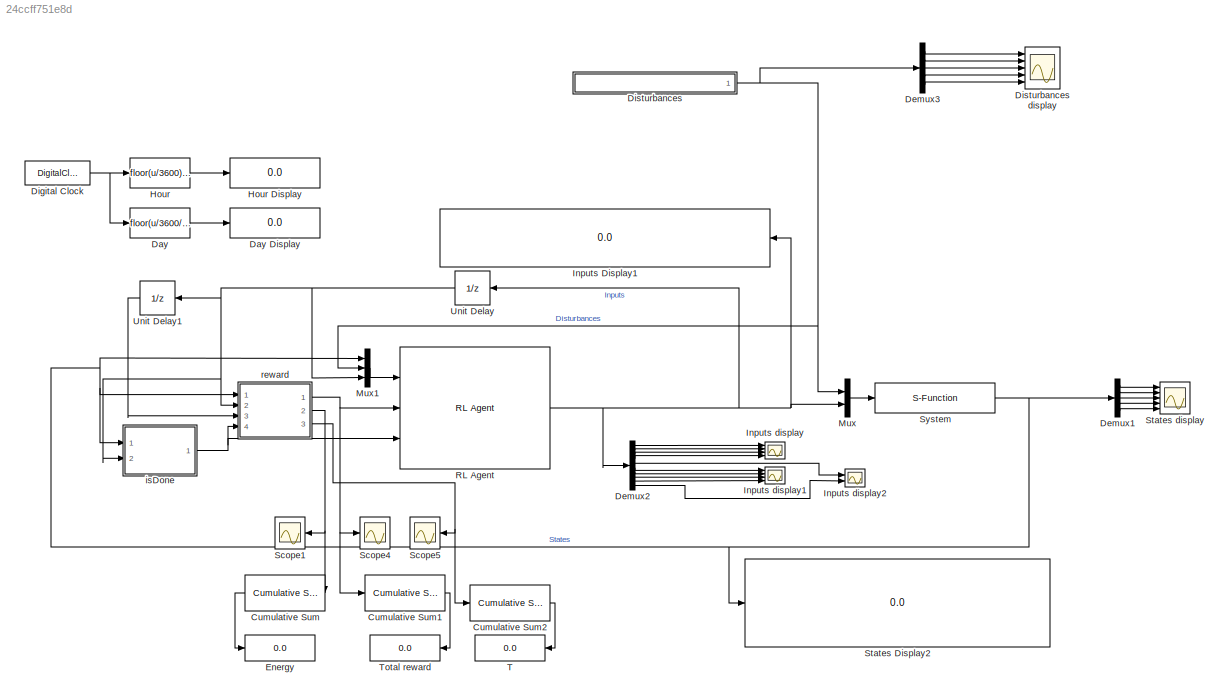
MODEL slx_24ccff751e8d
KIND model
CONFIG AbsTol = auto
CONFIG EnableMultiTasking = on
CONFIG FixedStep = 2
CONFIG MaxStep = auto
CONFIG MinStep = auto
CONFIG RelTol = 1e-3
CONFIG SampleTimeConstraint = Unconstrained
CONFIG SolverName = ode45
CONFIG StartTime = 0.0
CONFIG StopTime = 3600*24*(simulation_days-2)
BLOCK [Reference] Cumulative Sum  REF=dspmathops/Cumulative
Sum
  Ports = [1, 1]
  SourceBlock = dspmathops/Cumulative\nSum
  SourceProductBaseCode = DS
  SourceType = Cumulative Sum
  UserDataPersistent = on
BLOCK [Reference] Cumulative Sum1  REF=dspmathops/Cumulative
Sum
  Ports = [1, 1]
  SourceBlock = dspmathops/Cumulative\nSum
  SourceProductBaseCode = DS
  SourceType = Cumulative Sum
  UserDataPersistent = on
BLOCK [Reference] Cumulative Sum2  REF=dspmathops/Cumulative
Sum
  Ports = [1, 1]
  SourceBlock = dspmathops/Cumulative\nSum
  SourceProductBaseCode = DS
  SourceType = Cumulative Sum
  UserDataPersistent = on
BLOCK [Fcn] Day
  Commented = on
  Expr = floor(u/3600/24)+1
  SampleTime = 1800
BLOCK [Display] Day Display
  Commented = on
  Decimation = 1
  Ports = [1]
BLOCK [Demux] Demux1
  Outputs = 5
  Ports = [1, 5]
BLOCK [Demux] Demux2
  Outputs = 10
  Ports = [1, 10]
BLOCK [Demux] Demux3
  Outputs = 5
  Ports = [1, 5]
BLOCK [DigitalClock] Digital Clock
  Commented = on
  SampleTime = 60
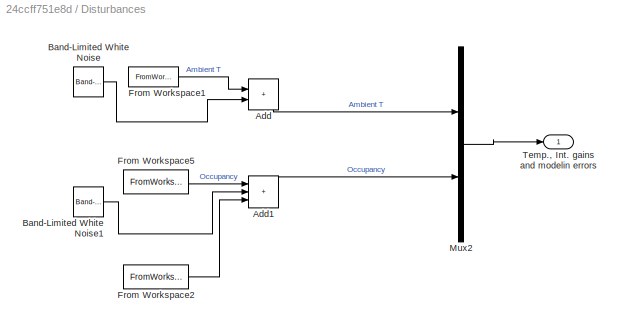
BLOCK [SubSystem] Disturbances
  Ports = [0, 1]
  RequestExecContextInheritance = off
  TreatAsAtomicUnit = on
BLOCK [Scope] Disturbances display
  Floating = off
  NumInputPorts = 5
  Ports = [5]
  ScopeSpecificationString = Simulink.scopes.TimeScopeBlockCfg('CurrentConfiguration', extmgr.ConfigurationSet(extmgr.Configuration('Core','General UI',true),extmgr.Configuration('Core','Source UI',true),extmgr.Configuration('Sources','WiredSimulink',true,'DataLoggingVariableName','dist','DataLoggingSaveFormat','StructureWithTime','DataLoggingDecimation','1','DataLoggingDecimateData',true),extmgr.Configuration('Visuals','Time...<+2387ch>
BLOCK [Sum] Disturbances/Add
  IconShape = rectangular
  Ports = [2, 1]
BLOCK [Sum] Disturbances/Add1
  IconShape = rectangular
  Inputs = +++
  Ports = [3, 1]
BLOCK [Reference] Disturbances/Band-Limited White Noise  REF=simulink/Sources/Band-Limited
White Noise
  Ports = [0, 1]
  SourceBlock = simulink/Sources/Band-Limited\nWhite Noise
  SourceProductBaseCode = SL
  SourceType = Band-Limited White Noise.
BLOCK [Reference] Disturbances/Band-Limited White Noise1  REF=simulink/Sources/Band-Limited
White Noise
  Ports = [0, 1]
  SourceBlock = simulink/Sources/Band-Limited\nWhite Noise
  SourceProductBaseCode = SL
  SourceType = Band-Limited White Noise.
BLOCK [FromWorkspace] Disturbances/From Workspace1
  OutDataTypeStr = double
  SampleTime = Ts
  VariableName = T_supply
  ZeroCross = off
BLOCK [FromWorkspace] Disturbances/From Workspace2
  OutDataTypeStr = double
  SampleTime = Ts
  VariableName = w_struct
  ZeroCross = off
BLOCK [FromWorkspace] Disturbances/From Workspace5
  OutDataTypeStr = double
  SampleTime = Ts
  VariableName = Pds_struct
  ZeroCross = off
BLOCK [Mux] Disturbances/Mux2
  DisplayOption = bar
  Inputs = 2
  Ports = [2, 1]
BLOCK [Outport] Disturbances/Temp., Int. gains and modelin errors
BLOCK [Display] Energy
  Decimation = 1
  Ports = [1]
BLOCK [Fcn] Hour
  Commented = on
  Expr = floor(u/3600)-floor(u/3600/24)*24
  SampleTime = 1800
BLOCK [Display] Hour Display
  Commented = on
  Decimation = 1
  Ports = [1]
BLOCK [Display] Inputs Display1
  Decimation = 1
  Ports = [1]
BLOCK [Scope] Inputs display
  Floating = off
  NumInputPorts = 4
  Ports = [4]
  ScopeSpecificationString = Simulink.scopes.TimeScopeBlockCfg('CurrentConfiguration', extmgr.ConfigurationSet(extmgr.Configuration('Core','General UI',true),extmgr.Configuration('Core','Source UI',true),extmgr.Configuration('Sources','WiredSimulink',true,'DataLogging',true,'DataLoggingVariableName','inputs','DataLoggingSaveFormat','StructureWithTime','DataLoggingDecimation','1','DataLoggingDecimateData',true),extmgr.Configur...<+3816ch>
BLOCK [Scope] Inputs display1
  Floating = off
  NumInputPorts = 4
  Ports = [4]
  ScopeSpecificationString = Simulink.scopes.TimeScopeBlockCfg('CurrentConfiguration', extmgr.ConfigurationSet(extmgr.Configuration('Core','General UI',true),extmgr.Configuration('Core','Source UI',true),extmgr.Configuration('Sources','WiredSimulink',true,'DataLogging',true,'DataLoggingVariableName','ScopeData1','DataLoggingSaveFormat','StructureWithTime','DataLoggingDecimation','1','DataLoggingDecimateData',true),extmgr.Conf...<+3822ch>
BLOCK [Scope] Inputs display2
  Floating = off
  NumInputPorts = 2
  Ports = [2]
  ScopeSpecificationString = Simulink.scopes.TimeScopeBlockCfg('CurrentConfiguration', extmgr.ConfigurationSet(extmgr.Configuration('Core','General UI',true),extmgr.Configuration('Core','Source UI',true),extmgr.Configuration('Sources','WiredSimulink',true,'DataLogging',true,'DataLoggingVariableName','ScopeData2','DataLoggingSaveFormat','StructureWithTime','DataLoggingDecimation','1','DataLoggingDecimateData',true),extmgr.Conf...<+2429ch>
BLOCK [Mux] Mux
  DisplayOption = bar
  Inputs = 2
  Ports = [2, 1]
BLOCK [Mux] Mux1
  DisplayOption = bar
  Inputs = 3
  Ports = [3, 1]
BLOCK [Reference] RL Agent  REF=rllib/RL Agent
  Ports = [3, 1]
  SourceBlock = rllib/RL Agent
  SourceProductBaseCode = RL
  SourceType = RL Agent
BLOCK [Scope] Scope1
  Floating = off
  NumInputPorts = 1
  Ports = [1]
  ScopeSpecificationString = Simulink.scopes.TimeScopeBlockCfg('CurrentConfiguration', extmgr.ConfigurationSet(extmgr.Configuration('Core','General UI',true),extmgr.Configuration('Core','Source UI',true),extmgr.Configuration('Sources','WiredSimulink',true,'DataLoggingVariableName','ScopeData1','DataLoggingSaveFormat','StructureWithTime','DataLoggingDecimation','1','DataLoggingDecimateData',true),extmgr.Configuration('Visuals'...<+1806ch>
BLOCK [Scope] Scope4
  Floating = off
  NumInputPorts = 1
  Ports = [1]
  ScopeSpecificationString = Simulink.scopes.TimeScopeBlockCfg('CurrentConfiguration', extmgr.ConfigurationSet(extmgr.Configuration('Core','General UI',true),extmgr.Configuration('Core','Source UI',true),extmgr.Configuration('Sources','WiredSimulink',true,'DataLoggingVariableName','ScopeData2','DataLoggingSaveFormat','StructureWithTime','DataLoggingDecimation','1','DataLoggingDecimateData',true),extmgr.Configuration('Visuals'...<+1795ch>
BLOCK [Scope] Scope5
  Floating = off
  NumInputPorts = 1
  Ports = [1]
  ScopeSpecificationString = Simulink.scopes.TimeScopeBlockCfg('CurrentConfiguration', extmgr.ConfigurationSet(extmgr.Configuration('Core','General UI',true),extmgr.Configuration('Core','Source UI',true),extmgr.Configuration('Sources','WiredSimulink',true,'DataLoggingVariableName','ScopeData3','DataLoggingSaveFormat','StructureWithTime','DataLoggingDecimation','1','DataLoggingDecimateData',true),extmgr.Configuration('Visuals'...<+1795ch>
BLOCK [Display] States Display2
  Decimation = 1
  Ports = [1]
BLOCK [Scope] States display
  Floating = off
  NumInputPorts = 5
  Ports = [5]
  ScopeSpecificationString = Simulink.scopes.TimeScopeBlockCfg('CurrentConfiguration', extmgr.ConfigurationSet(extmgr.Configuration('Core','General UI',true),extmgr.Configuration('Core','Source UI',true),extmgr.Configuration('Sources','WiredSimulink',true,'DataLogging',true,'DataLoggingVariableName','states','DataLoggingSaveFormat','StructureWithTime','DataLoggingDecimation','1','DataLoggingDecimateData',true),extmgr.Configur...<+4512ch>
BLOCK [S-Function] System
  EnableBusSupport = off
  FunctionName = maborrelli_sfunc_nzonesT
  Parameters = ci,paramsnz,Ts
  Ports = [1, 1]
  SFcnIsStateOwnerBlock = off
  SFunctionDeploymentMode = off
BLOCK [Display] T
  Decimation = 1
  Ports = [1]
BLOCK [Display] Total reward
  Decimation = 1
  Ports = [1]
BLOCK [UnitDelay] Unit Delay
  HasFrameUpgradeWarning = on
  SampleTime = Ts2
BLOCK [UnitDelay] Unit Delay1
  HasFrameUpgradeWarning = on
  SampleTime = Ts2
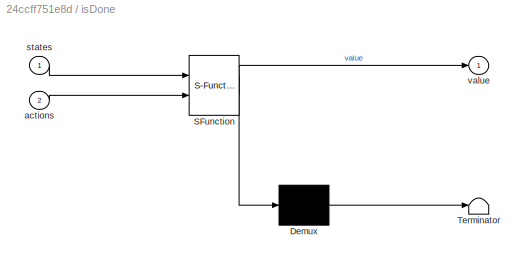
BLOCK [SubSystem] isDone
  ErrorFcn = Stateflow.Translate.translate
  PermitHierarchicalResolution = ExplicitOnly
  Ports = [2, 1]
  RequestExecContextInheritance = off
  SFBlockType = MATLAB Function
  TreatAsAtomicUnit = on
BLOCK [Demux] isDone/ Demux 
  Outputs = 1
  Ports = [1, 1]
BLOCK [S-Function] isDone/ SFunction 
  EnableBusSupport = on
  FunctionName = sf_sfun
  PortCounts = [2 2]
  Ports = [2, 2]
  SFcnIsStateOwnerBlock = off
  SFunctionDeploymentMode = off
  Tag = Stateflow S-Function 1
BLOCK [Terminator] isDone/ Terminator 
BLOCK [Inport] isDone/actions
  Port = 2
BLOCK [Inport] isDone/states
BLOCK [Outport] isDone/value
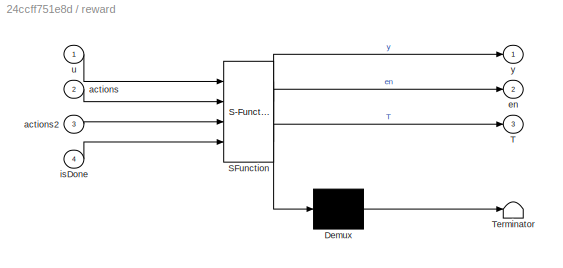
BLOCK [SubSystem] reward
  ErrorFcn = Stateflow.Translate.translate
  PermitHierarchicalResolution = ExplicitOnly
  Ports = [4, 3]
  RequestExecContextInheritance = off
  SFBlockType = MATLAB Function
  TreatAsAtomicUnit = on
BLOCK [Demux] reward/ Demux 
  Outputs = 1
  Ports = [1, 1]
BLOCK [S-Function] reward/ SFunction 
  EnableBusSupport = on
  FunctionName = sf_sfun
  Parameters = beta,high,low,params,scale
  PortCounts = [4 4]
  Ports = [4, 4]
  SFcnIsStateOwnerBlock = off
  SFunctionDeploymentMode = off
  Tag = Stateflow S-Function 2
BLOCK [Terminator] reward/ Terminator 
BLOCK [Outport] reward/T
  Port = 3
BLOCK [Inport] reward/actions
  Port = 2
BLOCK [Inport] reward/actions2
  Port = 3
BLOCK [Outport] reward/en
  Port = 2
BLOCK [Inport] reward/isDone
  Port = 4
BLOCK [Inport] reward/u
BLOCK [Outport] reward/y
LINE Cumulative Sum1:1 -> Total reward:1
LINE Cumulative Sum2:1 -> T:1
LINE Cumulative Sum:1 -> Energy:1
LINE Day:1 -> Day Display:1
LINE Demux1:1 -> States display:1
LINE Demux1:2 -> States display:2
LINE Demux1:3 -> States display:3
LINE Demux1:4 -> States display:4
LINE Demux1:5 -> States display:5
LINE Demux2:1 -> Inputs display:1
LINE Demux2:10 -> Inputs display2:2
LINE Demux2:2 -> Inputs display:2
LINE Demux2:3 -> Inputs display:3
LINE Demux2:4 -> Inputs display:4
LINE Demux2:5 -> Inputs display2:1
LINE Demux2:6 -> Inputs display1:1
LINE Demux2:7 -> Inputs display1:2
LINE Demux2:8 -> Inputs display1:3
LINE Demux2:9 -> Inputs display1:4
LINE Demux3:1 -> Disturbances display:1
LINE Demux3:2 -> Disturbances display:2
LINE Demux3:3 -> Disturbances display:3
LINE Demux3:4 -> Disturbances display:4
LINE Demux3:5 -> Disturbances display:5
NET Digital Clock:1 -> Day:1, Hour:1
LINE Disturbances/Add1:1 -> Disturbances/Mux2:2
LINE Disturbances/Add:1 -> Disturbances/Mux2:1
LINE Disturbances/Band-Limited White Noise1:1 -> Disturbances/Add1:2
LINE Disturbances/Band-Limited White Noise:1 -> Disturbances/Add:2
LINE Disturbances/From Workspace1:1 -> Disturbances/Add:1
LINE Disturbances/From Workspace2:1 -> Disturbances/Add1:3
LINE Disturbances/From Workspace5:1 -> Disturbances/Add1:1
LINE Disturbances/Mux2:1 -> Disturbances/Temp., Int. gains and modelin errors:1
NET Disturbances:1 -> Demux3:1, Mux1:2, Mux:1
LINE Hour:1 -> Hour Display:1
LINE Mux1:1 -> RL Agent:1
LINE Mux:1 -> System:1
NET RL Agent:1 -> Demux2:1, Inputs Display1:1, Mux:2, Unit Delay:1
NET System:1 -> Demux1:1, Mux1:1, States Display2:1, isDone:1, reward:1
LINE Unit Delay1:1 -> reward:3
NET Unit Delay:1 -> Mux1:3, Unit Delay1:1, isDone:2, reward:2
NET isDone:1 -> RL Agent:3, reward:4
NET reward:1 -> Cumulative Sum1:1, RL Agent:2, Scope4:1
NET reward:2 -> Cumulative Sum:1, Scope1:1
NET reward:3 -> Cumulative Sum2:1, Scope5:1
note: NET lines group one-source signal fan-out (src -> all destinations, sorted); 1:1 wires keep LINE
CHART isDone states=1 transitions=1
  STATE_LABEL 'eML_blk_kernel()'
  STATE_LABEL 'SCRIPT:\nfunction value = isDone(states,actions)\n low = -0;\n max = 50;\n value = 0; \n %disp(length(block.InputPort(1).Data))\n for i=1:length(states)\n     %disp(i)\n     if sum(actions(1:4)) > 5\n        value = 1;\n        break\n     end\n     if i <=4\n        aux = states(i);\n        if (aux < low || aux > max) \n            %disp(abs(aux - low))\n            value = 1;\n            break\n        end\n    ...<+122ch>'
CHART reward states=1 transitions=1
  STATE_LABEL 'eML_blk_kernel()'
  STATE_LABEL 'SCRIPT:\nfunction [y, en, T] = reward(u ,  actions, actions2 , isDone, low, high, beta, params, scale)\n reward = 0;\n cp = params.cp;\n eta = params.eta;\n kf = params.kf;\n eta_h = params.eta_h;\n nz = 4;\n ms = actions(1:nz);\n Dt = actions(nz+1);\n Dth = actions(nz+2:2*nz+1);\n delta = actions(2*nz + 2);\n ms0 = actions2(1:nz);\n Dt0 = actions2(nz+1);\n Dth0 = actions2(nz+2:2*nz+1);\n delta0 = actions2(2*nz ...<+1470ch>'
CHART  states=0 transitions=0
CHART  states=0 transitions=0
